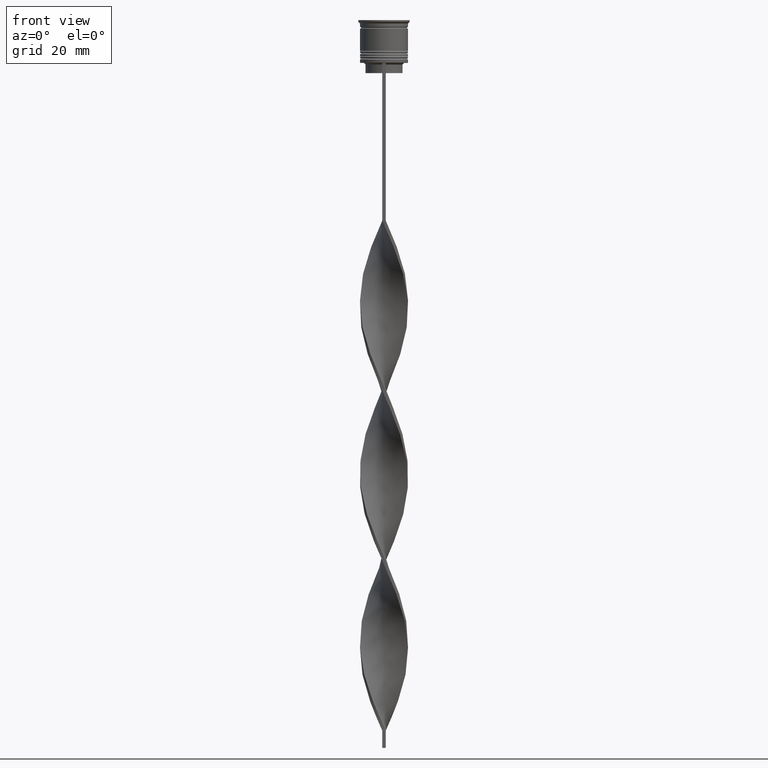
[diagram: clean part render]
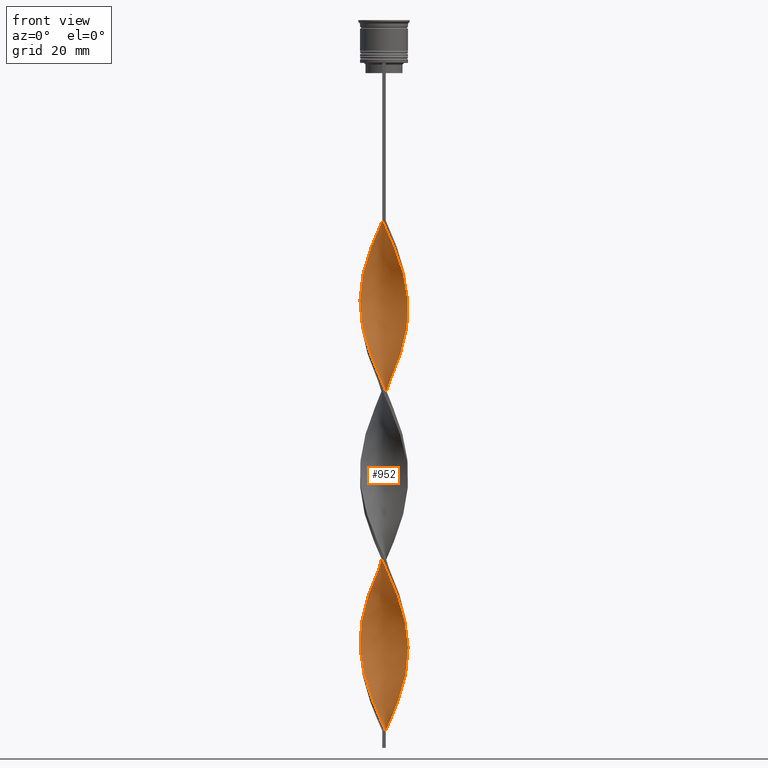
[diagram: same view with one face highlighted and labeled with its STEP entity id]
A machine part, front view. The second image highlights one B-rep face of the part: STEP entity #952.
In plain terms, the highlighted face is a freeform B-spline surface patch.
Its self-contained STEP definition (entity closure, byte-faithful):
#9 = CARTESIAN_POINT ( 'NONE',  ( 1.440874626053873842, -6.899041090270179311, -62.88235294117647811 ) ) ;
#33 = CARTESIAN_POINT ( 'NONE',  ( 4.346365046915568797, -5.509910242367891620, -169.5196078431372371 ) ) ;
#37 = CARTESIAN_POINT ( 'NONE',  ( -6.736663859307489233, 2.071291312187312883, -77.49019607843136725 ) ) ;
#55 = CARTESIAN_POINT ( 'NONE',  ( 5.712673125104408278, -4.127741927368044905, -173.9019607843137294 ) ) ;
#56 = CARTESIAN_POINT ( 'NONE',  ( -5.533515242862685923, 4.364985304700188529, -71.64705882352942012 ) ) ;
#63 = CARTESIAN_POINT ( 'NONE',  ( 1.148645523694209247, -6.953668176878987417, -109.6274509803921546 ) ) ;
#79 = CARTESIAN_POINT ( 'NONE',  ( -3.835796673391454803, 5.912660275514000752, -118.3921568627451109 ) ) ;
#80 = CARTESIAN_POINT ( 'NONE',  ( -7.029988692409724571, -0.5021420494578368032, -83.33333333333332860 ) ) ;
#85 = CARTESIAN_POINT ( 'NONE',  ( -7.029988692409723683, -0.5021420494578368032, -83.33333333333332860 ) ) ;
#98 = CARTESIAN_POINT ( 'NONE',  ( 5.887437909151303828, 3.819433841014672648, -93.55882352941176805 ) ) ;
#100 = CARTESIAN_POINT ( 'NONE',  ( 5.085373964136230107, 4.836214598721332081, -96.48039215686274872 ) ) ;
#104 = CARTESIAN_POINT ( 'NONE',  ( -5.712673125104412719, -4.127741927368047570, -92.09803921568628482 ) ) ;
#114 = CARTESIAN_POINT ( 'NONE',  ( -4.110133708006299180, -5.688303868668616481, -149.0686274509803866 ) ) ;
#120 = LINE ( 'NONE', #2234, #3353 ) ;
#132 = CARTESIAN_POINT ( 'NONE',  ( 7.016273413796890956, 0.1480114280955957262, -184.1274509803921546 ) ) ;
#136 = CARTESIAN_POINT ( 'NONE',  ( 3.583034730602820073, -6.069163844594761770, -115.4705882352941018 ) ) ;
#149 = CARTESIAN_POINT ( 'NONE',  ( 6.489012217373702818, 2.672586844758234825, -90.63725490196078738 ) ) ;
#152 = CARTESIAN_POINT ( 'NONE',  ( -0.7947600748740422105, -6.972686456695599944, -105.2450980392156765 ) ) ;
#168 = CARTESIAN_POINT ( 'NONE',  ( 6.373874598089928512, 3.007758344858553201, -138.8431372549019329 ) ) ;
#169 = CARTESIAN_POINT ( 'NONE',  ( -6.241360575439927061, 3.273882377329165205, -74.56862745098038658 ) ) ;
#179 = CARTESIAN_POINT ( 'NONE',  ( -1.777733174557940776, -6.788936938879025718, -154.9117647058823479 ) ) ;
#185 = CARTESIAN_POINT ( 'NONE',  ( 5.284803272772052196, 4.617451068294914585, -143.2254901960784537 ) ) ;
#186 = CARTESIAN_POINT ( 'NONE',  ( -6.043273861597169727, -3.567750136113299941, -90.63725490196078738 ) ) ;
#200 = CARTESIAN_POINT ( 'NONE',  ( 5.533515242862682371, 4.364985304700184976, -194.3529411764705799 ) ) ;
#204 = CARTESIAN_POINT ( 'NONE',  ( -5.712673125104412719, -4.127741927368047570, -92.09803921568628482 ) ) ;
#218 =( BOUNDED_SURFACE ( )  B_SPLINE_SURFACE ( 1, 2, ( 
 ( #3845, #2356, #1750, #9, #3548, #836, #286, #2063, #1219, #565, #2412, #3612, #1490, #227, #1433, #3254, #1771, #2433, #3633, #2225, #1260, #3064, #1239, #330, #370, #1583, #100, #3694, #1002, #3050, #3105, #722, #2205, #2455, #3399, #353, #2772, #704, #3659, #1022, #1858, #79, #649, #3420, #1284, #1914, #2478, #3679, #1874, #984, #2185, #3379, #413, #687, #1893, #1606, #2143, #1625, #963, #2807, #2167, #2495, #114, #3085, #395, #1318, #1561, #2792, #2752, #1303, #1541, #2513, #3363, #3026, #3714, #2733, #33, #939, #3344, #55, #672, #433, #1930, #3122, #2823, #1639, #132, #1901, #1592, #1270, #677, #2259, #2462, #359, #402, #3055, #3384, #970, #3162, #2583, #692, #1986, #2779 ),
 ( #990, #1570, #2152, #2193, #3090, #1969, #1678, #2858, #2172, #1079, #950, #169, #378, #1374, #3369, #1612, #2565, #85, #2875, #3667, #2797, #1880, #186, #104, #3769, #1307, #2502, #3683, #3700, #1058, #3453, #2281, #760, #474, #3471, #63, #778, #1292, #3178, #2484, #488, #1694, #1396, #3351, #659, #3071, #1864, #2761, #1748, #1098, #3564, #3217, #1488, #2317, #2618, #812, #3821, #1135, #1453, #525, #2299, #2024, #1730, #2936, #1710, #1170, #3272, #2079, #3252, #2978, #1431, #582, #2336, #869, #3528, #834, #225, #3802, #1790, #3488, #793, #3546, #268, #852, #2043, #284, #3236, #2061, #3788, #545, #563, #2000, #3504, #3196, #2370, #245, #2639, #3843, #1156, #2354, #1769, #3862, #2957 ) ),
 .UNSPECIFIED., .F., .F., .F. ) 
 B_SPLINE_SURFACE_WITH_KNOTS ( ( 2, 2 ),
 ( 3, 2, 2, 2, 2, 2, 2, 2, 2, 2, 2, 2, 2, 2, 2, 2, 2, 2, 2, 2, 2, 2, 2, 2, 2, 2, 2, 2, 2, 2, 2, 2, 2, 2, 2, 2, 2, 2, 2, 2, 2, 2, 2, 2, 2, 2, 2, 2, 2, 2, 2, 3 ),
 ( 0.000000000000000000, 1.000000000000000000 ),
 ( 0.000000000000000000, 0.01470588235294117627, 0.02941176470588235253, 0.04411764705882353227, 0.05882352941176470507, 0.07352941176470588480, 0.08823529411764706454, 0.1029411764705882304, 0.1176470588235294101, 0.1323529411764705899, 0.1470588235294117696, 0.1617647058823529493, 0.1764705882352941291, 0.1911764705882352811, 0.2058823529411764608, 0.2205882352941176405, 0.2352941176470588203, 0.2500000000000000000, 0.2647058823529411797, 0.2794117647058823595, 0.2941176470588235392, 0.3088235294117647189, 0.3235294117647058987, 0.3382352941176470784, 0.3529411764705882582, 0.3676470588235294379, 0.3823529411764705621, 0.3970588235294117418, 0.4117647058823529216, 0.4264705882352941013, 0.4411764705882352811, 0.4558823529411764608, 0.4705882352941176405, 0.4852941176470588203, 0.5000000000000000000, 0.5147058823529411242, 0.5294117647058823595, 0.5441176470588234837, 0.5588235294117647189, 0.5735294117647058432, 0.5882352941176470784, 0.6029411764705882026, 0.6176470588235294379, 0.6323529411764705621, 0.6470588235294117974, 0.6617647058823529216, 0.6764705882352941568, 0.6911764705882352811, 0.7058823529411765163, 0.7205882352941176405, 0.7352941176470588758, 0.7500000000000000000 ),
 .UNSPECIFIED. ) 
 GEOMETRIC_REPRESENTATION_ITEM ( )  RATIONAL_B_SPLINE_SURFACE ( (
 ( 1.000000000000000000, 0.9957341762950344677, 1.000000000000000000, 0.9957341762950344677, 1.000000000000000000, 0.9957341762950344677, 1.000000000000000000, 0.9957341762950344677, 1.000000000000000000, 0.9957341762950344677, 1.000000000000000000, 0.9957341762950344677, 1.000000000000000000, 0.9957341762950344677, 1.000000000000000000, 0.9957341762950344677, 1.000000000000000000, 0.9957341762950344677, 1.000000000000000000, 0.9957341762950344677, 1.000000000000000000, 0.9957341762950344677, 1.000000000000000000, 0.9957341762950344677, 1.000000000000000000, 0.9957341762950344677, 1.000000000000000000, 0.9957341762950344677, 1.000000000000000000, 0.9957341762950344677, 1.000000000000000000, 0.9957341762950344677, 1.000000000000000000, 0.9957341762950344677, 1.000000000000000000, 0.9957341762950344677, 1.000000000000000000, 0.9957341762950344677, 1.000000000000000000, 0.9957341762950344677, 1.000000000000000000, 0.9957341762950344677, 1.000000000000000000, 0.9957341762950344677, 1.000000000000000000, 0.9957341762950344677, 1.000000000000000000, 0.9957341762950344677, 1.000000000000000000, 0.9957341762950344677, 1.000000000000000000, 0.9957341762950344677, 1.000000000000000000, 0.9957341762950344677, 1.000000000000000000, 0.9957341762950344677, 1.000000000000000000, 0.9957341762950344677, 1.000000000000000000, 0.9957341762950344677, 1.000000000000000000, 0.9957341762950344677, 1.000000000000000000, 0.9957341762950344677, 1.000000000000000000, 0.9957341762950344677, 1.000000000000000000, 0.9957341762950344677, 1.000000000000000000, 0.9957341762950344677, 1.000000000000000000, 0.9957341762950344677, 1.000000000000000000, 0.9957341762950344677, 1.000000000000000000, 0.9957341762950344677, 1.000000000000000000, 0.9957341762950344677, 1.000000000000000000, 0.9957341762950344677, 1.000000000000000000, 0.9957341762950344677, 1.000000000000000000, 0.9957341762950344677, 1.000000000000000000, 0.9957341762950344677, 1.000000000000000000, 0.9957341762950344677, 1.000000000000000000, 0.9957341762950344677, 1.000000000000000000, 0.9957341762950344677, 1.000000000000000000, 0.9957341762950344677, 1.000000000000000000, 0.9957341762950344677, 1.000000000000000000, 0.9957341762950344677, 1.000000000000000000, 0.9957341762950344677, 1.000000000000000000, 0.9957341762950344677, 1.000000000000000000),
 ( 1.000000000000000000, 0.9957341762950344677, 1.000000000000000000, 0.9957341762950344677, 1.000000000000000000, 0.9957341762950344677, 1.000000000000000000, 0.9957341762950344677, 1.000000000000000000, 0.9957341762950344677, 1.000000000000000000, 0.9957341762950344677, 1.000000000000000000, 0.9957341762950344677, 1.000000000000000000, 0.9957341762950344677, 1.000000000000000000, 0.9957341762950344677, 1.000000000000000000, 0.9957341762950344677, 1.000000000000000000, 0.9957341762950344677, 1.000000000000000000, 0.9957341762950344677, 1.000000000000000000, 0.9957341762950344677, 1.000000000000000000, 0.9957341762950344677, 1.000000000000000000, 0.9957341762950344677, 1.000000000000000000, 0.9957341762950344677, 1.000000000000000000, 0.9957341762950344677, 1.000000000000000000, 0.9957341762950344677, 1.000000000000000000, 0.9957341762950344677, 1.000000000000000000, 0.9957341762950344677, 1.000000000000000000, 0.9957341762950344677, 1.000000000000000000, 0.9957341762950344677, 1.000000000000000000, 0.9957341762950344677, 1.000000000000000000, 0.9957341762950344677, 1.000000000000000000, 0.9957341762950344677, 1.000000000000000000, 0.9957341762950344677, 1.000000000000000000, 0.9957341762950344677, 1.000000000000000000, 0.9957341762950344677, 1.000000000000000000, 0.9957341762950344677, 1.000000000000000000, 0.9957341762950344677, 1.000000000000000000, 0.9957341762950344677, 1.000000000000000000, 0.9957341762950344677, 1.000000000000000000, 0.9957341762950344677, 1.000000000000000000, 0.9957341762950344677, 1.000000000000000000, 0.9957341762950344677, 1.000000000000000000, 0.9957341762950344677, 1.000000000000000000, 0.9957341762950344677, 1.000000000000000000, 0.9957341762950344677, 1.000000000000000000, 0.9957341762950344677, 1.000000000000000000, 0.9957341762950344677, 1.000000000000000000, 0.9957341762950344677, 1.000000000000000000, 0.9957341762950344677, 1.000000000000000000, 0.9957341762950344677, 1.000000000000000000, 0.9957341762950344677, 1.000000000000000000, 0.9957341762950344677, 1.000000000000000000, 0.9957341762950344677, 1.000000000000000000, 0.9957341762950344677, 1.000000000000000000, 0.9957341762950344677, 1.000000000000000000, 0.9957341762950344677, 1.000000000000000000, 0.9957341762950344677, 1.000000000000000000, 0.9957341762950344677, 1.000000000000000000) ) ) 
 REPRESENTATION_ITEM ( '' )  SURFACE ( )  );
#220 = CARTESIAN_POINT ( 'NONE',  ( -5.533515242862680594, -4.364985304700186752, -144.6862745098039227 ) ) ;
#225 = CARTESIAN_POINT ( 'NONE',  ( -5.085373964136232772, 4.836214598721336522, -169.5196078431372371 ) ) ;
#227 = CARTESIAN_POINT ( 'NONE',  ( 6.373874598089922294, -3.007758344858553201, -77.49019607843138147 ) ) ;
#236 = CARTESIAN_POINT ( 'NONE',  ( 2.994927778012247632, 6.346684772736912450, -201.6568627450980387 ) ) ;
#245 = CARTESIAN_POINT ( 'NONE',  ( -3.835796673391458800, -5.912660275514003416, -197.2745098039215463 ) ) ;
#262 = CARTESIAN_POINT ( 'NONE',  ( -1.148645523694208137, -6.953668176878983864, -156.3725490196078454 ) ) ;
#267 = CARTESIAN_POINT ( 'NONE',  ( -2.062455548607893263, -6.707926438924069146, -201.6568627450980387 ) ) ;
#268 = CARTESIAN_POINT ( 'NONE',  ( -6.869610997245777284, 1.434728108918170708, -178.2843137254901933 ) ) ;
#284 = CARTESIAN_POINT ( 'NONE',  ( -7.029988692409723683, -0.5021420494578368032, -182.6666666666666572 ) ) ;
#286 = CARTESIAN_POINT ( 'NONE',  ( 3.259916572276681634, -6.214736031545974981, -67.26470588235292780 ) ) ;
#330 = CARTESIAN_POINT ( 'NONE',  ( 6.241360575439922620, 3.273882377329162985, -92.09803921568628482 ) ) ;
#353 = CARTESIAN_POINT ( 'NONE',  ( -0.1486455236942086366, 7.046331823121012583, -109.6274509803921546 ) ) ;
#359 = CARTESIAN_POINT ( 'NONE',  ( 5.533515242862682371, 4.364985304700184976, -194.3529411764705799 ) ) ;
#370 = CARTESIAN_POINT ( 'NONE',  ( 5.887437909151303828, 3.819433841014672648, -93.55882352941176805 ) ) ;
#371 = CARTESIAN_POINT ( 'NONE',  ( 0.4999999999999991673, -7.000000000000002665, -207.5000000000000000 ) ) ;
#378 = CARTESIAN_POINT ( 'NONE',  ( -6.489012217373707259, 2.672586844758237934, -76.02941176470586981 ) ) ;
#395 = CARTESIAN_POINT ( 'NONE',  ( -2.994927778012248520, -6.346684772736912450, -151.9901960784313530 ) ) ;
#402 = CARTESIAN_POINT ( 'NONE',  ( 5.085373964136230107, 4.836214598721332081, -195.8137254901960773 ) ) ;
#411 = CARTESIAN_POINT ( 'NONE',  ( 3.259916572276681634, -6.214736031545974981, -67.26470588235292780 ) ) ;
#413 = CARTESIAN_POINT ( 'NONE',  ( -7.016273413796890956, -0.1480114280955932282, -134.4607843137254974 ) ) ;
#433 = CARTESIAN_POINT ( 'NONE',  ( 6.373874598089922294, -3.007758344858553201, -176.8235294117647243 ) ) ;
#449 = CARTESIAN_POINT ( 'NONE',  ( 4.856933420439684568, -5.107160209221783376, -71.64705882352942012 ) ) ;
#454 = CARTESIAN_POINT ( 'NONE',  ( 6.924005054333593812, 1.143745604390628445, -134.4607843137254974 ) ) ;
#469 = CARTESIAN_POINT ( 'NONE',  ( 0.7947600748740408783, -6.972686456695594615, -61.42156862745097357 ) ) ;
#473 = CARTESIAN_POINT ( 'NONE',  ( -0.1486455236942075542, -7.046331823121019688, -106.7058823529411882 ) ) ;
#474 = CARTESIAN_POINT ( 'NONE',  ( -0.1486455236942075542, -7.046331823121019688, -106.7058823529412024 ) ) ;
#483 = CARTESIAN_POINT ( 'NONE',  ( -4.110133708006299180, -5.688303868668616481, -149.0686274509803866 ) ) ;
#487 = CARTESIAN_POINT ( 'NONE',  ( 2.406820825421679189, -6.624205700879072012, -112.5490196078431495 ) ) ;
#488 = CARTESIAN_POINT ( 'NONE',  ( 4.110133708006299180, -5.688303868668622698, -116.9313725490195992 ) ) ;
#501 = CARTESIAN_POINT ( 'NONE',  ( 3.259916572276681634, -6.214736031545974981, -166.5980392156862706 ) ) ;
#507 = CARTESIAN_POINT ( 'NONE',  ( 4.856933420439687232, 5.107160209221788705, -144.6862745098039227 ) ) ;
#520 = CARTESIAN_POINT ( 'NONE',  ( 1.777733174557942775, 6.788936938879025718, -204.5784313725490335 ) ) ;
#525 = CARTESIAN_POINT ( 'NONE',  ( 4.856933420439687232, 5.107160209221788705, -144.6862745098039227 ) ) ;
#539 = CARTESIAN_POINT ( 'NONE',  ( -6.043273861597166174, 3.567750136113296389, -125.6960784313725412 ) ) ;
#543 = CARTESIAN_POINT ( 'NONE',  ( -6.924005054333593812, -1.143745604390630666, -184.1274509803921546 ) ) ;
#545 = CARTESIAN_POINT ( 'NONE',  ( -6.373874598089927623, -3.007758344858554977, -188.5098039215686185 ) ) ;
#556 = CARTESIAN_POINT ( 'NONE',  ( -6.241360575439923508, -3.273882377329162985, -141.7647058823529562 ) ) ;
#561 = CARTESIAN_POINT ( 'NONE',  ( -4.856933420439688120, -5.107160209221786928, -194.3529411764705799 ) ) ;
#563 = CARTESIAN_POINT ( 'NONE',  ( -6.043273861597169727, -3.567750136113299941, -189.9705882352941160 ) ) ;
#565 = CARTESIAN_POINT ( 'NONE',  ( 4.856933420439684568, -5.107160209221783376, -71.64705882352943433 ) ) ;
#582 = CARTESIAN_POINT ( 'NONE',  ( -2.406820825421679189, 6.624205700879071124, -162.2156862745098351 ) ) ;
#598 = CARTESIAN_POINT ( 'NONE',  ( -6.818021416257463940, -1.785349159323426527, -185.5882352941176237 ) ) ;
#649 = CARTESIAN_POINT ( 'NONE',  ( -4.346365046915568797, 5.509910242367891620, -119.8529411764705799 ) ) ;
#650 = VERTEX_POINT ( 'NONE', #3804 ) ;
#659 = CARTESIAN_POINT ( 'NONE',  ( 5.887437909151305604, -3.819433841014677533, -122.7745098039215605 ) ) ;
#664 = CARTESIAN_POINT ( 'NONE',  ( -0.5000000000000000000, -6.999999999999997335, -58.50000000000000000 ) ) ;
#672 = CARTESIAN_POINT ( 'NONE',  ( 6.043273861597165286, -3.567750136113298165, -175.3627450980391984 ) ) ;
#677 = CARTESIAN_POINT ( 'NONE',  ( 6.489012217373702818, 2.672586844758234825, -189.9705882352941160 ) ) ;
#687 = CARTESIAN_POINT ( 'NONE',  ( -7.002558135184062671, -0.7981649056490314198, -135.9215686274509665 ) ) ;
#689 = CARTESIAN_POINT ( 'NONE',  ( -1.777733174557943663, 6.788936938879031047, -61.42156862745097357 ) ) ;
#692 = CARTESIAN_POINT ( 'NONE',  ( 1.777733174557942775, 6.788936938879025718, -204.5784313725490335 ) ) ;
#704 = CARTESIAN_POINT ( 'NONE',  ( -1.440874626053873842, 6.899041090270179311, -112.5490196078431495 ) ) ;
#705 = CARTESIAN_POINT ( 'NONE',  ( -5.085373964136232772, 4.836214598721336522, -70.18627450980390847 ) ) ;
#720 = CARTESIAN_POINT ( 'NONE',  ( -0.5000000000000000000, -6.999999999999997335, -58.50000000000000000 ) ) ;
#722 = CARTESIAN_POINT ( 'NONE',  ( 2.406820825421679189, 6.624205700879066683, -103.7843137254901933 ) ) ;
#734 = CARTESIAN_POINT ( 'NONE',  ( 1.440874626053873619, -6.899041090270179311, -62.88235294117647101 ) ) ;
#739 = CARTESIAN_POINT ( 'NONE',  ( 6.869610997245777284, -1.434728108918172929, -128.6176470588235361 ) ) ;
#755 = CARTESIAN_POINT ( 'NONE',  ( 1.777733174557942775, 6.788936938879025718, -105.2450980392156765 ) ) ;
#759 = CARTESIAN_POINT ( 'NONE',  ( -6.869610997245777284, 1.434728108918170708, -178.2843137254901933 ) ) ;
#760 = CARTESIAN_POINT ( 'NONE',  ( -0.7947600748740422105, -6.972686456695599944, -105.2450980392156765 ) ) ;
#773 = CARTESIAN_POINT ( 'NONE',  ( 2.994927778012247632, 6.346684772736912450, -102.3235294117646959 ) ) ;
#777 = CARTESIAN_POINT ( 'NONE',  ( -4.856933420439688120, -5.107160209221786928, -95.01960784313726549 ) ) ;
#778 = CARTESIAN_POINT ( 'NONE',  ( 1.777733174557942331, -6.788936938879031047, -111.0882352941176379 ) ) ;
#789 = CARTESIAN_POINT ( 'NONE',  ( -7.002558135184063559, -0.7981649056490314198, -135.9215686274509665 ) ) ;
#792 = CARTESIAN_POINT ( 'NONE',  ( -5.085373964136232772, 4.836214598721336522, -169.5196078431372371 ) ) ;
#793 = CARTESIAN_POINT ( 'NONE',  ( -6.489012217373707259, 2.672586844758237934, -175.3627450980391984 ) ) ;
#805 = CARTESIAN_POINT ( 'NONE',  ( 5.712673125104408278, -4.127741927368044017, -173.9019607843137294 ) ) ;
#811 = CARTESIAN_POINT ( 'NONE',  ( 6.241360575439927061, -3.273882377329166538, -124.2352941176470580 ) ) ;
#812 = CARTESIAN_POINT ( 'NONE',  ( 6.373874598089928512, 3.007758344858553201, -138.8431372549019045 ) ) ;
#828 = CARTESIAN_POINT ( 'NONE',  ( 4.110133708006296516, 5.688303868668619145, -198.7352941176470722 ) ) ;
#834 = CARTESIAN_POINT ( 'NONE',  ( -4.637232685409779620, 5.307443892742487179, -168.0588235294117680 ) ) ;
#836 = CARTESIAN_POINT ( 'NONE',  ( 2.684036471161910242, -6.516811787577953652, -65.80392156862747299 ) ) ;
#848 = CARTESIAN_POINT ( 'NONE',  ( -5.085373964136228331, -4.836214598721334745, -146.1470588235294201 ) ) ;
#852 = CARTESIAN_POINT ( 'NONE',  ( -7.002558135184068000, 0.7981649056490309757, -179.7450980392157192 ) ) ;
#864 = CARTESIAN_POINT ( 'NONE',  ( 0.5000000000000008882, 6.999999999999997335, -207.5000000000000000 ) ) ;
#869 = CARTESIAN_POINT ( 'NONE',  ( -3.583034730602820517, 6.069163844594761770, -165.1372549019608016 ) ) ;
#886 = CARTESIAN_POINT ( 'NONE',  ( -5.712673125104412719, -4.127741927368047570, -191.4313725490196134 ) ) ;
#939 = CARTESIAN_POINT ( 'NONE',  ( 4.856933420439684568, -5.107160209221783376, -170.9803921568627629 ) ) ;
#942 = CARTESIAN_POINT ( 'NONE',  ( -6.595948007173694450, -2.396553752090990752, -87.71568627450979250 ) ) ;
#950 = CARTESIAN_POINT ( 'NONE',  ( -5.887437909151306492, 3.819433841014676645, -73.10784313725488914 ) ) ;
#952 = ADVANCED_FACE ( 'NONE', ( #1792 ), #218, .T. ) ;
#963 = CARTESIAN_POINT ( 'NONE',  ( -5.887437909151304716, -3.819433841014671760, -143.2254901960784537 ) ) ;
#970 = CARTESIAN_POINT ( 'NONE',  ( 3.583034730602818296, 6.069163844594755552, -200.1960784313725981 ) ) ;
#984 = CARTESIAN_POINT ( 'NONE',  ( -6.818021416257460388, 1.785349159323422530, -130.0784313725490335 ) ) ;
#990 = CARTESIAN_POINT ( 'NONE',  ( -0.5000000000000000000, 7.000000000000002665, -58.50000000000000000 ) ) ;
#1000 = CARTESIAN_POINT ( 'NONE',  ( -2.062455548607892375, 6.707926438924063817, -114.0098039215686185 ) ) ;
#1002 = CARTESIAN_POINT ( 'NONE',  ( 4.110133708006296516, 5.688303868668619145, -99.40196078431372939 ) ) ;
#1022 = CARTESIAN_POINT ( 'NONE',  ( -2.684036471161910242, 6.516811787577953652, -115.4705882352940876 ) ) ;
#1043 = CARTESIAN_POINT ( 'NONE',  ( 7.029988692409724571, 0.5021420494578359150, -133.0000000000000000 ) ) ;
#1057 = CARTESIAN_POINT ( 'NONE',  ( -2.062455548607893263, -6.707926438924069146, -102.3235294117646959 ) ) ;
#1058 = CARTESIAN_POINT ( 'NONE',  ( -2.684036471161914239, -6.516811787577958093, -100.8627450980392126 ) ) ;
#1073 = CARTESIAN_POINT ( 'NONE',  ( 5.712673125104408278, -4.127741927368044017, -74.56862745098038658 ) ) ;
#1076 = VERTEX_POINT ( 'NONE', #2165 ) ;
#1077 = CARTESIAN_POINT ( 'NONE',  ( 3.259916572276687852, 6.214736031545977646, -149.0686274509803866 ) ) ;
#1079 = CARTESIAN_POINT ( 'NONE',  ( -5.533515242862685035, 4.364985304700188529, -71.64705882352943433 ) ) ;
#1097 = CARTESIAN_POINT ( 'NONE',  ( -0.5000000000000000000, 7.000000000000002665, -157.8333333333333144 ) ) ;
#1098 = CARTESIAN_POINT ( 'NONE',  ( 7.002558135184068000, -0.7981649056490286442, -130.0784313725490335 ) ) ;
#1108 = CARTESIAN_POINT ( 'NONE',  ( -6.595948007173689120, 2.396553752090990752, -128.6176470588235361 ) ) ;
#1113 = CARTESIAN_POINT ( 'NONE',  ( -3.583034730602820961, 6.069163844594761770, -165.1372549019608016 ) ) ;
#1129 = CARTESIAN_POINT ( 'NONE',  ( 0.1486455236942082203, -7.046331823121012583, -159.2941176470588118 ) ) ;
#1135 = CARTESIAN_POINT ( 'NONE',  ( 5.712673125104412719, 4.127741927368047570, -141.7647058823529562 ) ) ;
#1150 = CARTESIAN_POINT ( 'NONE',  ( -4.637232685409776067, -5.307443892742481850, -147.6078431372548891 ) ) ;
#1155 = CARTESIAN_POINT ( 'NONE',  ( -3.835796673391458800, -5.912660275514003416, -197.2745098039215463 ) ) ;
#1156 = CARTESIAN_POINT ( 'NONE',  ( -2.062455548607893263, -6.707926438924069146, -201.6568627450980387 ) ) ;
#1167 = CARTESIAN_POINT ( 'NONE',  ( -5.712673125104407390, 4.127741927368045793, -124.2352941176470580 ) ) ;
#1170 = CARTESIAN_POINT ( 'NONE',  ( 1.440874626053877616, 6.899041090270182863, -153.4509803921568789 ) ) ;
#1189 = CARTESIAN_POINT ( 'NONE',  ( -4.346365046915573238, -5.509910242367893396, -195.8137254901960773 ) ) ;
#1209 = ORIENTED_EDGE ( 'NONE', *, *, #1243, .F. ) ;
#1219 = CARTESIAN_POINT ( 'NONE',  ( 4.346365046915568797, -5.509910242367891620, -70.18627450980390847 ) ) ;
#1227 = VERTEX_POINT ( 'NONE', #1335 ) ;
#1239 = CARTESIAN_POINT ( 'NONE',  ( 6.489012217373702818, 2.672586844758234825, -90.63725490196078738 ) ) ;
#1243 = EDGE_CURVE ( 'NONE', #2699, #650, #2537, .T. ) ;
#1248 = ORIENTED_EDGE ( 'NONE', *, *, #3041, .T. ) ;
#1260 = CARTESIAN_POINT ( 'NONE',  ( 6.869610997245771955, 1.434728108918170042, -87.71568627450979250 ) ) ;
#1263 = CARTESIAN_POINT ( 'NONE',  ( 0.5000000000000003331, 2.333333333333331261, -207.5000000000000000 ) ) ;
#1270 = CARTESIAN_POINT ( 'NONE',  ( 6.736663859307483904, 2.071291312187309774, -188.5098039215686185 ) ) ;
#1284 = CARTESIAN_POINT ( 'NONE',  ( -5.284803272772045979, 4.617451068294913696, -122.7745098039215605 ) ) ;
#1292 = CARTESIAN_POINT ( 'NONE',  ( 2.406820825421679189, -6.624205700879071124, -112.5490196078431495 ) ) ;
#1301 = CARTESIAN_POINT ( 'NONE',  ( -0.1486455236942086366, 7.046331823121012583, -109.6274509803921404 ) ) ;
#1303 = CARTESIAN_POINT ( 'NONE',  ( 0.1486455236942082203, -7.046331823121012583, -159.2941176470588118 ) ) ;
#1307 = CARTESIAN_POINT ( 'NONE',  ( -4.856933420439688120, -5.107160209221786928, -95.01960784313725128 ) ) ;
#1316 = CARTESIAN_POINT ( 'NONE',  ( 6.595948007173689120, -2.396553752090988088, -78.95098039215686470 ) ) ;
#1318 = CARTESIAN_POINT ( 'NONE',  ( -2.406820825421680077, -6.624205700879065795, -153.4509803921568789 ) ) ;
#1335 = CARTESIAN_POINT ( 'NONE',  ( 0.4999999999999991673, -7.000000000000002665, -207.5000000000000000 ) ) ;
#1340 = CARTESIAN_POINT ( 'NONE',  ( -1.148645523694208581, 6.953668176878987417, -159.2941176470588118 ) ) ;
#1353 = CARTESIAN_POINT ( 'NONE',  ( 5.085373964136230107, 4.836214598721332081, -96.48039215686274872 ) ) ;
#1357 = CARTESIAN_POINT ( 'NONE',  ( -1.777733174557943663, 6.788936938879031047, -160.7549019607842808 ) ) ;
#1373 = CARTESIAN_POINT ( 'NONE',  ( 4.637232685409777844, -5.307443892742488067, -118.3921568627451109 ) ) ;
#1374 = CARTESIAN_POINT ( 'NONE',  ( -6.736663859307489233, 2.071291312187312439, -77.49019607843138147 ) ) ;
#1389 = CARTESIAN_POINT ( 'NONE',  ( -6.924005054333588483, 1.143745604390630444, -131.5392156862745310 ) ) ;
#1394 = CARTESIAN_POINT ( 'NONE',  ( 3.835796673391459688, 5.912660275514002528, -147.6078431372548891 ) ) ;
#1396 = CARTESIAN_POINT ( 'NONE',  ( 5.085373964136232772, -4.836214598721336522, -119.8529411764705799 ) ) ;
#1411 = CARTESIAN_POINT ( 'NONE',  ( -7.016273413796890956, -0.1480114280955932282, -134.4607843137254974 ) ) ;
#1415 = CARTESIAN_POINT ( 'NONE',  ( -2.684036471161914239, -6.516811787577958093, -100.8627450980392126 ) ) ;
#1425 = CARTESIAN_POINT ( 'NONE',  ( -2.994927778012248520, -6.346684772736912450, -151.9901960784313530 ) ) ;
#1431 = CARTESIAN_POINT ( 'NONE',  ( -1.777733174557943663, 6.788936938879031047, -160.7549019607842808 ) ) ;
#1433 = CARTESIAN_POINT ( 'NONE',  ( 6.595948007173689120, -2.396553752090988088, -78.95098039215686470 ) ) ;
#1447 = CARTESIAN_POINT ( 'NONE',  ( 2.406820825421679189, 6.624205700879067571, -203.1176470588235361 ) ) ;
#1452 = CARTESIAN_POINT ( 'NONE',  ( -0.1486455236942075542, -7.046331823121019688, -206.0392156862745026 ) ) ;
#1453 = CARTESIAN_POINT ( 'NONE',  ( 5.284803272772052196, 4.617451068294914585, -143.2254901960784537 ) ) ;
#1460 =( BOUNDED_CURVE ( )  B_SPLINE_CURVE ( 2, ( #3051, #2734, #689, #2168, #3422, #2209, #3400, #1895, #705, #56, #1875, #3066, #3086, #37, #1916, #2774, #2794, #80, #3124, #3635, #942, #3470, #1985, #204, #3216, #777, #2844, #3177, #2826, #1415, #1057, #1641, #152, #473, #2552, #1676, #2857, #487, #2257, #136, #3750, #1373, #1999, #3436, #2892, #811, #3734, #3193, #739, #1693, #2563, #1043, #454, #3141, #1659, #168, #2873, #3768, #185, #507, #2316, #1394, #1077, #2600, #2280, #2581, #2023, #3787, #1097, #1340, #1357, #3501, #3801, #1113, #2298, #3487, #792, #2534, #2242, #1709, #1947, #3452, #759, #1968, #3161, #2386, #543, #598, #2117, #3587, #3842, #886, #1747, #561, #1189, #1155, #2409, #3235, #267, #2042, #3609, #1452, #2995 ),
 .UNSPECIFIED., .F., .T. ) 
 B_SPLINE_CURVE_WITH_KNOTS ( ( 3, 2, 2, 2, 2, 2, 2, 2, 2, 2, 2, 2, 2, 2, 2, 2, 2, 2, 2, 2, 2, 2, 2, 2, 2, 2, 2, 2, 2, 2, 2, 2, 2, 2, 2, 2, 2, 2, 2, 2, 2, 2, 2, 2, 2, 2, 2, 2, 2, 2, 2, 3 ),
 ( 0.000000000000000000, 0.01470588235294117453, 0.02941176470588234906, 0.04411764705882353227, 0.05882352941176469813, 0.07352941176470588480, 0.08823529411764706454, 0.1029411764705882443, 0.1176470588235293963, 0.1323529411764705899, 0.1470588235294117696, 0.1617647058823529493, 0.1764705882352941291, 0.1911764705882352811, 0.2058823529411764885, 0.2205882352941176405, 0.2352941176470587925, 0.2500000000000000000, 0.2647058823529411797, 0.2794117647058823595, 0.2941176470588235392, 0.3088235294117647189, 0.3235294117647058987, 0.3382352941176470229, 0.3529411764705882582, 0.3676470588235294379, 0.3823529411764705621, 0.3970588235294117418, 0.4117647058823529771, 0.4264705882352941013, 0.4411764705882352811, 0.4558823529411764608, 0.4705882352941175850, 0.4852941176470588203, 0.5000000000000000000, 0.5147058823529411242, 0.5294117647058823595, 0.5441176470588234837, 0.5588235294117647189, 0.5735294117647058432, 0.5882352941176470784, 0.6029411764705882026, 0.6176470588235294379, 0.6323529411764705621, 0.6470588235294117974, 0.6617647058823529216, 0.6764705882352940458, 0.6911764705882351700, 0.7058823529411765163, 0.7205882352941176405, 0.7352941176470588758, 0.7500000000000000000 ),
 .UNSPECIFIED. ) 
 CURVE ( )  GEOMETRIC_REPRESENTATION_ITEM ( )  RATIONAL_B_SPLINE_CURVE ( ( 1.000000000000000000, 0.9957341762950344677, 1.000000000000000000, 0.9957341762950344677, 1.000000000000000000, 0.9957341762950344677, 1.000000000000000000, 0.9957341762950344677, 1.000000000000000000, 0.9957341762950344677, 1.000000000000000000, 0.9957341762950344677, 1.000000000000000000, 0.9957341762950344677, 1.000000000000000000, 0.9957341762950344677, 1.000000000000000000, 0.9957341762950344677, 1.000000000000000000, 0.9957341762950344677, 1.000000000000000000, 0.9957341762950344677, 1.000000000000000000, 0.9957341762950344677, 1.000000000000000000, 0.9957341762950344677, 1.000000000000000000, 0.9957341762950344677, 1.000000000000000000, 0.9957341762950344677, 1.000000000000000000, 0.9957341762950344677, 1.000000000000000000, 0.9957341762950344677, 1.000000000000000000, 0.9957341762950344677, 1.000000000000000000, 0.9957341762950344677, 1.000000000000000000, 0.9957341762950344677, 1.000000000000000000, 0.9957341762950344677, 1.000000000000000000, 0.9957341762950344677, 1.000000000000000000, 0.9957341762950344677, 1.000000000000000000, 0.9957341762950344677, 1.000000000000000000, 0.9957341762950344677, 1.000000000000000000, 0.9957341762950344677, 1.000000000000000000, 0.9957341762950344677, 1.000000000000000000, 0.9957341762950344677, 1.000000000000000000, 0.9957341762950344677, 1.000000000000000000, 0.9957341762950344677, 1.000000000000000000, 0.9957341762950344677, 1.000000000000000000, 0.9957341762950344677, 1.000000000000000000, 0.9957341762950344677, 1.000000000000000000, 0.9957341762950344677, 1.000000000000000000, 0.9957341762950344677, 1.000000000000000000, 0.9957341762950344677, 1.000000000000000000, 0.9957341762950344677, 1.000000000000000000, 0.9957341762950344677, 1.000000000000000000, 0.9957341762950344677, 1.000000000000000000, 0.9957341762950344677, 1.000000000000000000, 0.9957341762950344677, 1.000000000000000000, 0.9957341762950344677, 1.000000000000000000, 0.9957341762950344677, 1.000000000000000000, 0.9957341762950344677, 1.000000000000000000, 0.9957341762950344677, 1.000000000000000000, 0.9957341762950344677, 1.000000000000000000, 0.9957341762950344677, 1.000000000000000000, 0.9957341762950344677, 1.000000000000000000, 0.9957341762950344677, 1.000000000000000000, 0.9957341762950344677, 1.000000000000000000, 0.9957341762950344677, 1.000000000000000000 ) ) 
 REPRESENTATION_ITEM ( '' )  );
#1469 = CARTESIAN_POINT ( 'NONE',  ( 7.029988692409719242, -0.5021420494578376914, -182.6666666666666856 ) ) ;
#1488 = CARTESIAN_POINT ( 'NONE',  ( 6.924005054333593812, 1.143745604390628445, -134.4607843137254974 ) ) ;
#1490 = CARTESIAN_POINT ( 'NONE',  ( 6.043273861597165286, -3.567750136113298165, -76.02941176470586981 ) ) ;
#1541 = CARTESIAN_POINT ( 'NONE',  ( 0.7947600748740408783, -6.972686456695594615, -160.7549019607842808 ) ) ;
#1561 = CARTESIAN_POINT ( 'NONE',  ( -1.777733174557940776, -6.788936938879025718, -154.9117647058823479 ) ) ;
#1570 = CARTESIAN_POINT ( 'NONE',  ( -1.148645523694208581, 6.953668176878987417, -59.96078431372549744 ) ) ;
#1583 = CARTESIAN_POINT ( 'NONE',  ( 5.533515242862682371, 4.364985304700184976, -95.01960784313725128 ) ) ;
#1592 = CARTESIAN_POINT ( 'NONE',  ( 6.869610997245771955, 1.434728108918170042, -187.0490196078431211 ) ) ;
#1604 = CARTESIAN_POINT ( 'NONE',  ( 1.148645523694207471, 6.953668176878983864, -106.7058823529411882 ) ) ;
#1606 = CARTESIAN_POINT ( 'NONE',  ( -6.736663859307484792, -2.071291312187307998, -138.8431372549019045 ) ) ;
#1612 = CARTESIAN_POINT ( 'NONE',  ( -7.002558135184068000, 0.7981649056490309757, -80.41176470588234793 ) ) ;
#1625 = CARTESIAN_POINT ( 'NONE',  ( -6.241360575439922620, -3.273882377329162985, -141.7647058823529562 ) ) ;
#1637 = CARTESIAN_POINT ( 'NONE',  ( 6.818021416257458611, -1.785349159323424972, -80.41176470588234793 ) ) ;
#1639 = CARTESIAN_POINT ( 'NONE',  ( 7.029988692409719242, -0.5021420494578376914, -182.6666666666666572 ) ) ;
#1641 = CARTESIAN_POINT ( 'NONE',  ( -1.440874626053876728, -6.899041090270183751, -103.7843137254901791 ) ) ;
#1646 = DIRECTION ( 'NONE',  ( 0.000000000000000000, 1.000000000000000000, 0.000000000000000000 ) ) ;
#1655 = CARTESIAN_POINT ( 'NONE',  ( 6.869610997245771955, 1.434728108918170042, -87.71568627450979250 ) ) ;
#1659 = CARTESIAN_POINT ( 'NONE',  ( 6.595948007173694450, 2.396553752090989864, -137.3823529411764639 ) ) ;
#1676 = CARTESIAN_POINT ( 'NONE',  ( 1.148645523694209247, -6.953668176878987417, -109.6274509803921404 ) ) ;
#1678 = CARTESIAN_POINT ( 'NONE',  ( -4.110133708006299180, 5.688303868668623586, -67.26470588235292780 ) ) ;
#1689 = CARTESIAN_POINT ( 'NONE',  ( -3.583034730602817408, -6.069163844594757329, -150.5294117647058840 ) ) ;
#1693 = CARTESIAN_POINT ( 'NONE',  ( 7.002558135184068888, -0.7981649056490286442, -130.0784313725490335 ) ) ;
#1694 = CARTESIAN_POINT ( 'NONE',  ( 4.637232685409778732, -5.307443892742488067, -118.3921568627451109 ) ) ;
#1707 = CARTESIAN_POINT ( 'NONE',  ( 4.856933420439684568, -5.107160209221783376, -170.9803921568627629 ) ) ;
#1709 = CARTESIAN_POINT ( 'NONE',  ( -6.241360575439927949, 3.273882377329165205, -173.9019607843137294 ) ) ;
#1710 = CARTESIAN_POINT ( 'NONE',  ( 2.062455548607894151, 6.707926438924069146, -151.9901960784313530 ) ) ;
#1725 = CARTESIAN_POINT ( 'NONE',  ( -4.346365046915568797, 5.509910242367891620, -119.8529411764705799 ) ) ;
#1730 = CARTESIAN_POINT ( 'NONE',  ( 3.259916572276687852, 6.214736031545977646, -149.0686274509803866 ) ) ;
#1743 = CARTESIAN_POINT ( 'NONE',  ( 5.887437909151303828, 3.819433841014672648, -192.8921568627450824 ) ) ;
#1747 = CARTESIAN_POINT ( 'NONE',  ( -5.284803272772051308, -4.617451068294915473, -192.8921568627450824 ) ) ;
#1748 = CARTESIAN_POINT ( 'NONE',  ( 6.869610997245777284, -1.434728108918172929, -128.6176470588235361 ) ) ;
#1750 = CARTESIAN_POINT ( 'NONE',  ( 0.7947600748740408783, -6.972686456695594615, -61.42156862745097357 ) ) ;
#1763 = CARTESIAN_POINT ( 'NONE',  ( 5.284803272772046867, -4.617451068294912808, -172.4411764705882035 ) ) ;
#1769 = CARTESIAN_POINT ( 'NONE',  ( -0.7947600748740422105, -6.972686456695599944, -204.5784313725490335 ) ) ;
#1771 = CARTESIAN_POINT ( 'NONE',  ( 6.924005054333587594, -1.143745604390631110, -81.87254901960783116 ) ) ;
#1790 = CARTESIAN_POINT ( 'NONE',  ( -5.887437909151306492, 3.819433841014676645, -172.4411764705882035 ) ) ;
#1792 = FACE_OUTER_BOUND ( 'NONE', #2531, .T. ) ;
#1858 = CARTESIAN_POINT ( 'NONE',  ( -3.259916572276682523, 6.214736031545974093, -116.9313725490195992 ) ) ;
#1864 = CARTESIAN_POINT ( 'NONE',  ( 6.489012217373708147, -2.672586844758236158, -125.6960784313725412 ) ) ;
#1874 = CARTESIAN_POINT ( 'NONE',  ( -6.595948007173689120, 2.396553752090990752, -128.6176470588235361 ) ) ;
#1875 = CARTESIAN_POINT ( 'NONE',  ( -5.887437909151306492, 3.819433841014676645, -73.10784313725488914 ) ) ;
#1880 = CARTESIAN_POINT ( 'NONE',  ( -6.373874598089927623, -3.007758344858554977, -89.17647058823527573 ) ) ;
#1893 = CARTESIAN_POINT ( 'NONE',  ( -6.869610997245771955, -1.434728108918169154, -137.3823529411764639 ) ) ;
#1895 = CARTESIAN_POINT ( 'NONE',  ( -4.637232685409778732, 5.307443892742487179, -68.72549019607842524 ) ) ;
#1901 = CARTESIAN_POINT ( 'NONE',  ( 7.002558135184062671, 0.7981649056490307537, -185.5882352941176237 ) ) ;
#1912 = CARTESIAN_POINT ( 'NONE',  ( -3.259916572276682523, 6.214736031545974093, -116.9313725490195992 ) ) ;
#1914 = CARTESIAN_POINT ( 'NONE',  ( -5.712673125104407390, 4.127741927368045793, -124.2352941176470580 ) ) ;
#1916 = CARTESIAN_POINT ( 'NONE',  ( -6.869610997245777284, 1.434728108918170708, -78.95098039215686470 ) ) ;
#1928 = CARTESIAN_POINT ( 'NONE',  ( 6.043273861597165286, -3.567750136113298165, -76.02941176470586981 ) ) ;
#1930 = CARTESIAN_POINT ( 'NONE',  ( 6.595948007173689120, -2.396553752090988088, -178.2843137254901933 ) ) ;
#1942 = B_SPLINE_CURVE_WITH_KNOTS ( 'NONE', 3,
 ( #3106, #1263, #2809, #371 ),
 .UNSPECIFIED., .F., .F.,
 ( 4, 4 ),
 ( 0.000000000000000000, 1.000000000000000000 ),
 .UNSPECIFIED. ) ;
#1945 = CARTESIAN_POINT ( 'NONE',  ( 3.835796673391455247, -5.912660275513998975, -68.72549019607842524 ) ) ;
#1947 = CARTESIAN_POINT ( 'NONE',  ( -6.489012217373707259, 2.672586844758237934, -175.3627450980391984 ) ) ;
#1968 = CARTESIAN_POINT ( 'NONE',  ( -7.002558135184068888, 0.7981649056490309757, -179.7450980392157476 ) ) ;
#1969 = CARTESIAN_POINT ( 'NONE',  ( -3.583034730602820517, 6.069163844594761770, -65.80392156862747299 ) ) ;
#1981 = CARTESIAN_POINT ( 'NONE',  ( 2.406820825421679189, 6.624205700879067571, -103.7843137254901791 ) ) ;
#1985 = CARTESIAN_POINT ( 'NONE',  ( -6.043273861597169727, -3.567750136113299941, -90.63725490196078738 ) ) ;
#1986 = CARTESIAN_POINT ( 'NONE',  ( 1.148645523694207249, 6.953668176878983864, -206.0392156862745026 ) ) ;
#1995 = CARTESIAN_POINT ( 'NONE',  ( 0.7947600748740408783, -6.972686456695594615, -160.7549019607842808 ) ) ;
#1999 = CARTESIAN_POINT ( 'NONE',  ( 5.085373964136232772, -4.836214598721336522, -119.8529411764705799 ) ) ;
#2000 = CARTESIAN_POINT ( 'NONE',  ( -5.712673125104412719, -4.127741927368047570, -191.4313725490196134 ) ) ;
#2016 = CARTESIAN_POINT ( 'NONE',  ( 3.583034730602818740, 6.069163844594755552, -200.1960784313725696 ) ) ;
#2023 = CARTESIAN_POINT ( 'NONE',  ( 0.7947600748740401011, 6.972686456695599944, -154.9117647058823479 ) ) ;
#2024 = CARTESIAN_POINT ( 'NONE',  ( 3.835796673391459688, 5.912660275514002528, -147.6078431372548891 ) ) ;
#2038 = CARTESIAN_POINT ( 'NONE',  ( 2.684036471161910242, -6.516811787577953652, -165.1372549019608016 ) ) ;
#2042 = CARTESIAN_POINT ( 'NONE',  ( -1.440874626053876728, -6.899041090270183751, -203.1176470588235361 ) ) ;
#2043 = CARTESIAN_POINT ( 'NONE',  ( -7.016273413796895397, 0.1480114280955971418, -181.2058823529411598 ) ) ;
#2057 = CARTESIAN_POINT ( 'NONE',  ( -5.284803272772045979, 4.617451068294913696, -122.7745098039215605 ) ) ;
#2061 = CARTESIAN_POINT ( 'NONE',  ( -6.818021416257463940, -1.785349159323426527, -185.5882352941176237 ) ) ;
#2063 = CARTESIAN_POINT ( 'NONE',  ( 3.835796673391455691, -5.912660275513999864, -68.72549019607842524 ) ) ;
#2073 = CARTESIAN_POINT ( 'NONE',  ( 6.818021416257458611, -1.785349159323424972, -179.7450980392157476 ) ) ;
#2079 = CARTESIAN_POINT ( 'NONE',  ( 0.1486455236942084146, 7.046331823121019688, -156.3725490196078454 ) ) ;
#2117 = CARTESIAN_POINT ( 'NONE',  ( -6.595948007173694450, -2.396553752090990752, -187.0490196078431211 ) ) ;
#2143 = CARTESIAN_POINT ( 'NONE',  ( -6.489012217373701930, -2.672586844758237490, -140.3039215686274588 ) ) ;
#2152 = CARTESIAN_POINT ( 'NONE',  ( -1.777733174557943663, 6.788936938879031047, -61.42156862745097357 ) ) ;
#2165 = CARTESIAN_POINT ( 'NONE',  ( -0.5000000000000000000, 7.000000000000002665, -58.50000000000000000 ) ) ;
#2167 = CARTESIAN_POINT ( 'NONE',  ( -5.085373964136228331, -4.836214598721334745, -146.1470588235294201 ) ) ;
#2168 = CARTESIAN_POINT ( 'NONE',  ( -2.406820825421679189, 6.624205700879072012, -62.88235294117647101 ) ) ;
#2172 = CARTESIAN_POINT ( 'NONE',  ( -5.085373964136232772, 4.836214598721336522, -70.18627450980390847 ) ) ;
#2185 = CARTESIAN_POINT ( 'NONE',  ( -6.924005054333588483, 1.143745604390630444, -131.5392156862745310 ) ) ;
#2193 = CARTESIAN_POINT ( 'NONE',  ( -2.406820825421679189, 6.624205700879071124, -62.88235294117647811 ) ) ;
#2202 = CARTESIAN_POINT ( 'NONE',  ( -2.684036471161910242, 6.516811787577953652, -115.4705882352941018 ) ) ;
#2205 = CARTESIAN_POINT ( 'NONE',  ( 1.777733174557942775, 6.788936938879025718, -105.2450980392156765 ) ) ;
#2209 = CARTESIAN_POINT ( 'NONE',  ( -3.583034730602820961, 6.069163844594761770, -65.80392156862745878 ) ) ;
#2225 = CARTESIAN_POINT ( 'NONE',  ( 7.002558135184062671, 0.7981649056490307537, -86.25490196078432348 ) ) ;
#2234 = CARTESIAN_POINT ( 'NONE',  ( -0.5000000000000000000, -6.999999999999997335, -58.50000000000000000 ) ) ;
#2239 = CARTESIAN_POINT ( 'NONE',  ( 5.533515242862682371, 4.364985304700184976, -95.01960784313726549 ) ) ;
#2242 = CARTESIAN_POINT ( 'NONE',  ( -5.887437909151306492, 3.819433841014676645, -172.4411764705882035 ) ) ;
#2253 = CARTESIAN_POINT ( 'NONE',  ( 0.1486455236942082203, -7.046331823121012583, -59.96078431372549034 ) ) ;
#2257 = CARTESIAN_POINT ( 'NONE',  ( 2.994927778012250741, -6.346684772736916003, -114.0098039215686185 ) ) ;
#2259 = CARTESIAN_POINT ( 'NONE',  ( 6.241360575439922620, 3.273882377329162985, -191.4313725490196134 ) ) ;
#2275 = CARTESIAN_POINT ( 'NONE',  ( 3.583034730602818740, 6.069163844594755552, -100.8627450980392126 ) ) ;
#2280 = CARTESIAN_POINT ( 'NONE',  ( 2.062455548607894151, 6.707926438924069146, -151.9901960784313530 ) ) ;
#2281 = CARTESIAN_POINT ( 'NONE',  ( -1.440874626053876728, -6.899041090270183751, -103.7843137254901933 ) ) ;
#2293 = CARTESIAN_POINT ( 'NONE',  ( -6.869610997245771955, -1.434728108918169154, -137.3823529411764639 ) ) ;
#2298 = CARTESIAN_POINT ( 'NONE',  ( -4.110133708006299180, 5.688303868668623586, -166.5980392156862706 ) ) ;
#2299 = CARTESIAN_POINT ( 'NONE',  ( 4.346365046915571462, 5.509910242367894284, -146.1470588235294201 ) ) ;
#2312 = CARTESIAN_POINT ( 'NONE',  ( 7.016273413796890956, 0.1480114280955957262, -184.1274509803921546 ) ) ;
#2316 = CARTESIAN_POINT ( 'NONE',  ( 4.346365046915571462, 5.509910242367894284, -146.1470588235294201 ) ) ;
#2317 = CARTESIAN_POINT ( 'NONE',  ( 6.818021416257463940, 1.785349159323427415, -135.9215686274509665 ) ) ;
#2331 = CARTESIAN_POINT ( 'NONE',  ( 6.924005054333587594, -1.143745604390631110, -181.2058823529411598 ) ) ;
#2336 = CARTESIAN_POINT ( 'NONE',  ( -2.994927778012249409, 6.346684772736916891, -163.6764705882352757 ) ) ;
#2350 = CARTESIAN_POINT ( 'NONE',  ( 2.062455548607891487, -6.707926438924064705, -163.6764705882352757 ) ) ;
#2354 = CARTESIAN_POINT ( 'NONE',  ( -1.440874626053876728, -6.899041090270183751, -203.1176470588235361 ) ) ;
#2356 = CARTESIAN_POINT ( 'NONE',  ( 0.1486455236942082203, -7.046331823121012583, -59.96078431372549744 ) ) ;
#2366 = CARTESIAN_POINT ( 'NONE',  ( 1.148645523694207471, 6.953668176878983864, -206.0392156862745026 ) ) ;
#2370 = CARTESIAN_POINT ( 'NONE',  ( -4.346365046915573238, -5.509910242367893396, -195.8137254901960773 ) ) ;
#2386 = CARTESIAN_POINT ( 'NONE',  ( -7.029988692409724571, -0.5021420494578368032, -182.6666666666666856 ) ) ;
#2409 = CARTESIAN_POINT ( 'NONE',  ( -3.259916572276684299, -6.214736031545979422, -198.7352941176470722 ) ) ;
#2412 = CARTESIAN_POINT ( 'NONE',  ( 5.284803272772046867, -4.617451068294912808, -73.10784313725488914 ) ) ;
#2433 = CARTESIAN_POINT ( 'NONE',  ( 7.029988692409719242, -0.5021420494578376914, -83.33333333333332860 ) ) ;
#2455 = CARTESIAN_POINT ( 'NONE',  ( 1.148645523694207249, 6.953668176878983864, -106.7058823529412024 ) ) ;
#2462 = CARTESIAN_POINT ( 'NONE',  ( 5.887437909151303828, 3.819433841014672648, -192.8921568627450824 ) ) ;
#2478 = CARTESIAN_POINT ( 'NONE',  ( -6.043273861597166174, 3.567750136113296389, -125.6960784313725412 ) ) ;
#2484 = CARTESIAN_POINT ( 'NONE',  ( 3.583034730602819629, -6.069163844594761770, -115.4705882352940876 ) ) ;
#2493 = CARTESIAN_POINT ( 'NONE',  ( -0.7947600748740394350, 6.972686456695594615, -111.0882352941176379 ) ) ;
#2495 = CARTESIAN_POINT ( 'NONE',  ( -4.637232685409776956, -5.307443892742481850, -147.6078431372548891 ) ) ;
#2499 = EDGE_CURVE ( 'NONE', #650, #1227, #1942, .T. ) ;
#2502 = CARTESIAN_POINT ( 'NONE',  ( -4.346365046915573238, -5.509910242367893396, -96.48039215686274872 ) ) ;
#2511 = CARTESIAN_POINT ( 'NONE',  ( 6.924005054333587594, -1.143745604390631110, -81.87254901960783116 ) ) ;
#2513 = CARTESIAN_POINT ( 'NONE',  ( 1.440874626053873842, -6.899041090270179311, -162.2156862745098351 ) ) ;
#2529 = CARTESIAN_POINT ( 'NONE',  ( 7.029988692409719242, -0.5021420494578376914, -83.33333333333332860 ) ) ;
#2531 = EDGE_LOOP ( 'NONE', ( #1248, #3305, #3608, #1209 ) ) ;
#2534 = CARTESIAN_POINT ( 'NONE',  ( -5.533515242862685923, 4.364985304700188529, -170.9803921568627629 ) ) ;
#2537 =( BOUNDED_CURVE ( )  B_SPLINE_CURVE ( 2, ( #720, #2253, #469, #734, #2840, #3762, #411, #1945, #2805, #449, #2790, #1073, #1928, #3173, #1316, #1637, #2511, #2529, #3448, #3712, #1655, #3730, #149, #3120, #98, #2239, #1353, #3747, #3397, #2275, #773, #1981, #755, #1604, #3155, #1301, #2493, #3692, #1000, #2202, #1912, #3103, #1725, #3521, #2057, #1167, #539, #3798, #1108, #2596, #1389, #2612, #1411, #789, #2293, #3231, #2951, #556, #3837, #220, #848, #1150, #483, #1689, #1425, #3815, #179, #262, #3189, #1129, #1995, #2911, #2350, #2038, #501, #3782, #3212, #1707, #1763, #805, #3542, #2888, #2634, #2073, #2331, #1469, #2312, #3559, #2929, #3248, #2654, #2870, #1743, #200, #3858, #3497, #828, #2016, #236, #1447, #520, #2366, #864 ),
 .UNSPECIFIED., .F., .T. ) 
 B_SPLINE_CURVE_WITH_KNOTS ( ( 3, 2, 2, 2, 2, 2, 2, 2, 2, 2, 2, 2, 2, 2, 2, 2, 2, 2, 2, 2, 2, 2, 2, 2, 2, 2, 2, 2, 2, 2, 2, 2, 2, 2, 2, 2, 2, 2, 2, 2, 2, 2, 2, 2, 2, 2, 2, 2, 2, 2, 2, 3 ),
 ( 0.000000000000000000, 0.01470588235294117453, 0.02941176470588234906, 0.04411764705882353227, 0.05882352941176469813, 0.07352941176470588480, 0.08823529411764706454, 0.1029411764705882443, 0.1176470588235293963, 0.1323529411764705899, 0.1470588235294117696, 0.1617647058823529493, 0.1764705882352941291, 0.1911764705882352811, 0.2058823529411764885, 0.2205882352941176405, 0.2352941176470587925, 0.2500000000000000000, 0.2647058823529411797, 0.2794117647058823595, 0.2941176470588235392, 0.3088235294117647189, 0.3235294117647058987, 0.3382352941176470229, 0.3529411764705882582, 0.3676470588235294379, 0.3823529411764705621, 0.3970588235294117418, 0.4117647058823529771, 0.4264705882352941013, 0.4411764705882352811, 0.4558823529411764608, 0.4705882352941175850, 0.4852941176470588203, 0.5000000000000000000, 0.5147058823529411242, 0.5294117647058823595, 0.5441176470588234837, 0.5588235294117647189, 0.5735294117647058432, 0.5882352941176470784, 0.6029411764705882026, 0.6176470588235294379, 0.6323529411764705621, 0.6470588235294117974, 0.6617647058823529216, 0.6764705882352940458, 0.6911764705882351700, 0.7058823529411765163, 0.7205882352941176405, 0.7352941176470588758, 0.7500000000000000000 ),
 .UNSPECIFIED. ) 
 CURVE ( )  GEOMETRIC_REPRESENTATION_ITEM ( )  RATIONAL_B_SPLINE_CURVE ( ( 1.000000000000000000, 0.9957341762950344677, 1.000000000000000000, 0.9957341762950344677, 1.000000000000000000, 0.9957341762950344677, 1.000000000000000000, 0.9957341762950344677, 1.000000000000000000, 0.9957341762950344677, 1.000000000000000000, 0.9957341762950344677, 1.000000000000000000, 0.9957341762950344677, 1.000000000000000000, 0.9957341762950344677, 1.000000000000000000, 0.9957341762950344677, 1.000000000000000000, 0.9957341762950344677, 1.000000000000000000, 0.9957341762950344677, 1.000000000000000000, 0.9957341762950344677, 1.000000000000000000, 0.9957341762950344677, 1.000000000000000000, 0.9957341762950344677, 1.000000000000000000, 0.9957341762950344677, 1.000000000000000000, 0.9957341762950344677, 1.000000000000000000, 0.9957341762950344677, 1.000000000000000000, 0.9957341762950344677, 1.000000000000000000, 0.9957341762950344677, 1.000000000000000000, 0.9957341762950344677, 1.000000000000000000, 0.9957341762950344677, 1.000000000000000000, 0.9957341762950344677, 1.000000000000000000, 0.9957341762950344677, 1.000000000000000000, 0.9957341762950344677, 1.000000000000000000, 0.9957341762950344677, 1.000000000000000000, 0.9957341762950344677, 1.000000000000000000, 0.9957341762950344677, 1.000000000000000000, 0.9957341762950344677, 1.000000000000000000, 0.9957341762950344677, 1.000000000000000000, 0.9957341762950344677, 1.000000000000000000, 0.9957341762950344677, 1.000000000000000000, 0.9957341762950344677, 1.000000000000000000, 0.9957341762950344677, 1.000000000000000000, 0.9957341762950344677, 1.000000000000000000, 0.9957341762950344677, 1.000000000000000000, 0.9957341762950344677, 1.000000000000000000, 0.9957341762950344677, 1.000000000000000000, 0.9957341762950344677, 1.000000000000000000, 0.9957341762950344677, 1.000000000000000000, 0.9957341762950344677, 1.000000000000000000, 0.9957341762950344677, 1.000000000000000000, 0.9957341762950344677, 1.000000000000000000, 0.9957341762950344677, 1.000000000000000000, 0.9957341762950344677, 1.000000000000000000, 0.9957341762950344677, 1.000000000000000000, 0.9957341762950344677, 1.000000000000000000, 0.9957341762950344677, 1.000000000000000000, 0.9957341762950344677, 1.000000000000000000, 0.9957341762950344677, 1.000000000000000000, 0.9957341762950344677, 1.000000000000000000, 0.9957341762950344677, 1.000000000000000000 ) ) 
 REPRESENTATION_ITEM ( '' )  );
#2552 = CARTESIAN_POINT ( 'NONE',  ( 0.4999999999999991673, -7.000000000000002665, -108.1666666666666572 ) ) ;
#2563 = CARTESIAN_POINT ( 'NONE',  ( 7.016273413796896286, -0.1480114280955963924, -131.5392156862745310 ) ) ;
#2565 = CARTESIAN_POINT ( 'NONE',  ( -7.016273413796895397, 0.1480114280955971418, -81.87254901960783116 ) ) ;
#2581 = CARTESIAN_POINT ( 'NONE',  ( 1.440874626053877616, 6.899041090270182863, -153.4509803921568789 ) ) ;
#2582 = EDGE_CURVE ( 'NONE', #1076, #1227, #1460, .T. ) ;
#2583 = CARTESIAN_POINT ( 'NONE',  ( 2.406820825421679189, 6.624205700879066683, -203.1176470588235361 ) ) ;
#2596 = CARTESIAN_POINT ( 'NONE',  ( -6.818021416257460388, 1.785349159323422308, -130.0784313725490335 ) ) ;
#2600 = CARTESIAN_POINT ( 'NONE',  ( 2.684036471161911575, 6.516811787577958981, -150.5294117647058840 ) ) ;
#2612 = CARTESIAN_POINT ( 'NONE',  ( -7.029988692409719242, 0.5021420494578385796, -133.0000000000000000 ) ) ;
#2618 = CARTESIAN_POINT ( 'NONE',  ( 6.595948007173694450, 2.396553752090989864, -137.3823529411764639 ) ) ;
#2634 = CARTESIAN_POINT ( 'NONE',  ( 6.595948007173689120, -2.396553752090988088, -178.2843137254901933 ) ) ;
#2639 = CARTESIAN_POINT ( 'NONE',  ( -3.259916572276684299, -6.214736031545979422, -198.7352941176470722 ) ) ;
#2654 = CARTESIAN_POINT ( 'NONE',  ( 6.489012217373702818, 2.672586844758234825, -189.9705882352941160 ) ) ;
#2699 = VERTEX_POINT ( 'NONE', #664 ) ;
#2733 = CARTESIAN_POINT ( 'NONE',  ( 3.835796673391455691, -5.912660275513999864, -168.0588235294117680 ) ) ;
#2734 = CARTESIAN_POINT ( 'NONE',  ( -1.148645523694208581, 6.953668176878987417, -59.96078431372549034 ) ) ;
#2752 = CARTESIAN_POINT ( 'NONE',  ( -0.5000000000000000000, -6.999999999999997335, -157.8333333333333144 ) ) ;
#2761 = CARTESIAN_POINT ( 'NONE',  ( 6.736663859307489233, -2.071291312187312439, -127.1568627450980102 ) ) ;
#2772 = CARTESIAN_POINT ( 'NONE',  ( -0.7947600748740394350, 6.972686456695594615, -111.0882352941176379 ) ) ;
#2774 = CARTESIAN_POINT ( 'NONE',  ( -7.002558135184068888, 0.7981649056490309757, -80.41176470588234793 ) ) ;
#2779 = CARTESIAN_POINT ( 'NONE',  ( 0.5000000000000008882, 6.999999999999997335, -207.5000000000000000 ) ) ;
#2790 = CARTESIAN_POINT ( 'NONE',  ( 5.284803272772046867, -4.617451068294912808, -73.10784313725488914 ) ) ;
#2792 = CARTESIAN_POINT ( 'NONE',  ( -1.148645523694208137, -6.953668176878983864, -156.3725490196078454 ) ) ;
#2794 = CARTESIAN_POINT ( 'NONE',  ( -7.016273413796895397, 0.1480114280955971418, -81.87254901960783116 ) ) ;
#2797 = CARTESIAN_POINT ( 'NONE',  ( -6.595948007173694450, -2.396553752090990752, -87.71568627450979250 ) ) ;
#2805 = CARTESIAN_POINT ( 'NONE',  ( 4.346365046915568797, -5.509910242367891620, -70.18627450980390847 ) ) ;
#2807 = CARTESIAN_POINT ( 'NONE',  ( -5.533515242862680594, -4.364985304700186752, -144.6862745098039227 ) ) ;
#2809 = CARTESIAN_POINT ( 'NONE',  ( 0.4999999999999996669, -2.333333333333336590, -207.5000000000000000 ) ) ;
#2823 = CARTESIAN_POINT ( 'NONE',  ( 6.924005054333587594, -1.143745604390631110, -181.2058823529411598 ) ) ;
#2826 = CARTESIAN_POINT ( 'NONE',  ( -3.259916572276684299, -6.214736031545979422, -99.40196078431372939 ) ) ;
#2840 = CARTESIAN_POINT ( 'NONE',  ( 2.062455548607891487, -6.707926438924064705, -64.34313725490196134 ) ) ;
#2844 = CARTESIAN_POINT ( 'NONE',  ( -4.346365046915573238, -5.509910242367893396, -96.48039215686274872 ) ) ;
#2857 = CARTESIAN_POINT ( 'NONE',  ( 1.777733174557942331, -6.788936938879031047, -111.0882352941176379 ) ) ;
#2858 = CARTESIAN_POINT ( 'NONE',  ( -4.637232685409779620, 5.307443892742487179, -68.72549019607842524 ) ) ;
#2870 = CARTESIAN_POINT ( 'NONE',  ( 6.241360575439923508, 3.273882377329162985, -191.4313725490196134 ) ) ;
#2873 = CARTESIAN_POINT ( 'NONE',  ( 6.043273861597169727, 3.567750136113302162, -140.3039215686274588 ) ) ;
#2875 = CARTESIAN_POINT ( 'NONE',  ( -6.924005054333593812, -1.143745604390630666, -84.79411764705882604 ) ) ;
#2888 = CARTESIAN_POINT ( 'NONE',  ( 6.373874598089922294, -3.007758344858553201, -176.8235294117647243 ) ) ;
#2892 = CARTESIAN_POINT ( 'NONE',  ( 5.887437909151305604, -3.819433841014677533, -122.7745098039215605 ) ) ;
#2911 = CARTESIAN_POINT ( 'NONE',  ( 1.440874626053873619, -6.899041090270179311, -162.2156862745098351 ) ) ;
#2929 = CARTESIAN_POINT ( 'NONE',  ( 6.869610997245771955, 1.434728108918170042, -187.0490196078431211 ) ) ;
#2936 = CARTESIAN_POINT ( 'NONE',  ( 2.684036471161911575, 6.516811787577959869, -150.5294117647058840 ) ) ;
#2951 = CARTESIAN_POINT ( 'NONE',  ( -6.489012217373701930, -2.672586844758237490, -140.3039215686274588 ) ) ;
#2957 = CARTESIAN_POINT ( 'NONE',  ( 0.4999999999999991673, -7.000000000000002665, -207.5000000000000000 ) ) ;
#2978 = CARTESIAN_POINT ( 'NONE',  ( -1.148645523694208581, 6.953668176878987417, -159.2941176470588118 ) ) ;
#2995 = CARTESIAN_POINT ( 'NONE',  ( 0.4999999999999991673, -7.000000000000002665, -207.5000000000000000 ) ) ;
#3026 = CARTESIAN_POINT ( 'NONE',  ( 2.684036471161910242, -6.516811787577953652, -165.1372549019608016 ) ) ;
#3041 = EDGE_CURVE ( 'NONE', #2699, #1076, #120, .T. ) ;
#3050 = CARTESIAN_POINT ( 'NONE',  ( 3.583034730602818296, 6.069163844594755552, -100.8627450980392126 ) ) ;
#3051 = CARTESIAN_POINT ( 'NONE',  ( -0.5000000000000000000, 7.000000000000002665, -58.50000000000000000 ) ) ;
#3055 = CARTESIAN_POINT ( 'NONE',  ( 4.637232685409776067, 5.307443892742482738, -197.2745098039215463 ) ) ;
#3064 = CARTESIAN_POINT ( 'NONE',  ( 6.736663859307483904, 2.071291312187309774, -89.17647058823527573 ) ) ;
#3066 = CARTESIAN_POINT ( 'NONE',  ( -6.241360575439927949, 3.273882377329165205, -74.56862745098038658 ) ) ;
#3071 = CARTESIAN_POINT ( 'NONE',  ( 6.241360575439926173, -3.273882377329166538, -124.2352941176470580 ) ) ;
#3085 = CARTESIAN_POINT ( 'NONE',  ( -3.583034730602816964, -6.069163844594757329, -150.5294117647058840 ) ) ;
#3086 = CARTESIAN_POINT ( 'NONE',  ( -6.489012217373707259, 2.672586844758237934, -76.02941176470586981 ) ) ;
#3090 = CARTESIAN_POINT ( 'NONE',  ( -2.994927778012249409, 6.346684772736916891, -64.34313725490196134 ) ) ;
#3103 = CARTESIAN_POINT ( 'NONE',  ( -3.835796673391454359, 5.912660275513999864, -118.3921568627451109 ) ) ;
#3105 = CARTESIAN_POINT ( 'NONE',  ( 2.994927778012247632, 6.346684772736912450, -102.3235294117646959 ) ) ;
#3106 = CARTESIAN_POINT ( 'NONE',  ( 0.5000000000000008882, 6.999999999999997335, -207.5000000000000000 ) ) ;
#3120 = CARTESIAN_POINT ( 'NONE',  ( 6.241360575439923508, 3.273882377329162985, -92.09803921568628482 ) ) ;
#3122 = CARTESIAN_POINT ( 'NONE',  ( 6.818021416257458611, -1.785349159323424972, -179.7450980392157192 ) ) ;
#3124 = CARTESIAN_POINT ( 'NONE',  ( -6.924005054333593812, -1.143745604390630666, -84.79411764705882604 ) ) ;
#3141 = CARTESIAN_POINT ( 'NONE',  ( 6.818021416257463940, 1.785349159323427415, -135.9215686274509665 ) ) ;
#3155 = CARTESIAN_POINT ( 'NONE',  ( 0.5000000000000008882, 6.999999999999997335, -108.1666666666666572 ) ) ;
#3161 = CARTESIAN_POINT ( 'NONE',  ( -7.016273413796895397, 0.1480114280955971418, -181.2058823529411598 ) ) ;
#3162 = CARTESIAN_POINT ( 'NONE',  ( 2.994927778012247632, 6.346684772736912450, -201.6568627450980387 ) ) ;
#3173 = CARTESIAN_POINT ( 'NONE',  ( 6.373874598089922294, -3.007758344858553201, -77.49019607843136725 ) ) ;
#3177 = CARTESIAN_POINT ( 'NONE',  ( -3.835796673391458800, -5.912660275514003416, -97.94117647058824616 ) ) ;
#3178 = CARTESIAN_POINT ( 'NONE',  ( 2.994927778012250741, -6.346684772736916003, -114.0098039215686185 ) ) ;
#3189 = CARTESIAN_POINT ( 'NONE',  ( -0.5000000000000000000, -6.999999999999997335, -157.8333333333333144 ) ) ;
#3193 = CARTESIAN_POINT ( 'NONE',  ( 6.736663859307489233, -2.071291312187312883, -127.1568627450980244 ) ) ;
#3196 = CARTESIAN_POINT ( 'NONE',  ( -4.856933420439688120, -5.107160209221786928, -194.3529411764705799 ) ) ;
#3212 = CARTESIAN_POINT ( 'NONE',  ( 4.346365046915568797, -5.509910242367891620, -169.5196078431372371 ) ) ;
#3216 = CARTESIAN_POINT ( 'NONE',  ( -5.284803272772051308, -4.617451068294915473, -93.55882352941176805 ) ) ;
#3217 = CARTESIAN_POINT ( 'NONE',  ( 7.029988692409723683, 0.5021420494578359150, -133.0000000000000000 ) ) ;
#3231 = CARTESIAN_POINT ( 'NONE',  ( -6.736663859307484792, -2.071291312187307554, -138.8431372549019329 ) ) ;
#3235 = CARTESIAN_POINT ( 'NONE',  ( -2.684036471161914239, -6.516811787577958093, -200.1960784313725696 ) ) ;
#3236 = CARTESIAN_POINT ( 'NONE',  ( -6.924005054333593812, -1.143745604390630666, -184.1274509803921546 ) ) ;
#3248 = CARTESIAN_POINT ( 'NONE',  ( 6.736663859307483904, 2.071291312187309774, -188.5098039215686185 ) ) ;
#3252 = CARTESIAN_POINT ( 'NONE',  ( -0.5000000000000000000, 7.000000000000002665, -157.8333333333333144 ) ) ;
#3254 = CARTESIAN_POINT ( 'NONE',  ( 6.818021416257458611, -1.785349159323424972, -80.41176470588234793 ) ) ;
#3272 = CARTESIAN_POINT ( 'NONE',  ( 0.7947600748740401011, 6.972686456695599944, -154.9117647058823479 ) ) ;
#3305 = ORIENTED_EDGE ( 'NONE', *, *, #2582, .T. ) ;
#3344 = CARTESIAN_POINT ( 'NONE',  ( 5.284803272772046867, -4.617451068294912808, -172.4411764705882035 ) ) ;
#3351 = CARTESIAN_POINT ( 'NONE',  ( 5.533515242862685923, -4.364985304700187640, -121.3137254901960631 ) ) ;
#3353 = VECTOR ( 'NONE', #1646, 1000.000000000000000 ) ;
#3363 = CARTESIAN_POINT ( 'NONE',  ( 2.062455548607891487, -6.707926438924064705, -163.6764705882352757 ) ) ;
#3369 = CARTESIAN_POINT ( 'NONE',  ( -6.869610997245777284, 1.434728108918170708, -78.95098039215686470 ) ) ;
#3379 = CARTESIAN_POINT ( 'NONE',  ( -7.029988692409719242, 0.5021420494578385796, -133.0000000000000000 ) ) ;
#3384 = CARTESIAN_POINT ( 'NONE',  ( 4.110133708006296516, 5.688303868668619145, -198.7352941176470722 ) ) ;
#3397 = CARTESIAN_POINT ( 'NONE',  ( 4.110133708006296516, 5.688303868668619145, -99.40196078431372939 ) ) ;
#3399 = CARTESIAN_POINT ( 'NONE',  ( 0.5000000000000008882, 6.999999999999997335, -108.1666666666666572 ) ) ;
#3400 = CARTESIAN_POINT ( 'NONE',  ( -4.110133708006299180, 5.688303868668623586, -67.26470588235292780 ) ) ;
#3420 = CARTESIAN_POINT ( 'NONE',  ( -4.856933420439685456, 5.107160209221782488, -121.3137254901960631 ) ) ;
#3422 = CARTESIAN_POINT ( 'NONE',  ( -2.994927778012249409, 6.346684772736916891, -64.34313725490196134 ) ) ;
#3436 = CARTESIAN_POINT ( 'NONE',  ( 5.533515242862686812, -4.364985304700187640, -121.3137254901960773 ) ) ;
#3448 = CARTESIAN_POINT ( 'NONE',  ( 7.016273413796890956, 0.1480114280955957262, -84.79411764705882604 ) ) ;
#3452 = CARTESIAN_POINT ( 'NONE',  ( -6.736663859307489233, 2.071291312187312883, -176.8235294117647243 ) ) ;
#3453 = CARTESIAN_POINT ( 'NONE',  ( -2.062455548607893263, -6.707926438924069146, -102.3235294117646959 ) ) ;
#3470 = CARTESIAN_POINT ( 'NONE',  ( -6.373874598089927623, -3.007758344858554977, -89.17647058823528994 ) ) ;
#3471 = CARTESIAN_POINT ( 'NONE',  ( 0.4999999999999991673, -7.000000000000002665, -108.1666666666666572 ) ) ;
#3487 = CARTESIAN_POINT ( 'NONE',  ( -4.637232685409778732, 5.307443892742487179, -168.0588235294117680 ) ) ;
#3488 = CARTESIAN_POINT ( 'NONE',  ( -6.241360575439927061, 3.273882377329165205, -173.9019607843137294 ) ) ;
#3497 = CARTESIAN_POINT ( 'NONE',  ( 4.637232685409776067, 5.307443892742482738, -197.2745098039215463 ) ) ;
#3501 = CARTESIAN_POINT ( 'NONE',  ( -2.406820825421679189, 6.624205700879072012, -162.2156862745098351 ) ) ;
#3504 = CARTESIAN_POINT ( 'NONE',  ( -5.284803272772051308, -4.617451068294915473, -192.8921568627450824 ) ) ;
#3521 = CARTESIAN_POINT ( 'NONE',  ( -4.856933420439685456, 5.107160209221782488, -121.3137254901960773 ) ) ;
#3528 = CARTESIAN_POINT ( 'NONE',  ( -4.110133708006299180, 5.688303868668623586, -166.5980392156862706 ) ) ;
#3542 = CARTESIAN_POINT ( 'NONE',  ( 6.043273861597165286, -3.567750136113298165, -175.3627450980391984 ) ) ;
#3546 = CARTESIAN_POINT ( 'NONE',  ( -6.736663859307489233, 2.071291312187312439, -176.8235294117647243 ) ) ;
#3548 = CARTESIAN_POINT ( 'NONE',  ( 2.062455548607891487, -6.707926438924064705, -64.34313725490196134 ) ) ;
#3559 = CARTESIAN_POINT ( 'NONE',  ( 7.002558135184063559, 0.7981649056490307537, -185.5882352941176237 ) ) ;
#3564 = CARTESIAN_POINT ( 'NONE',  ( 7.016273413796896286, -0.1480114280955963924, -131.5392156862745310 ) ) ;
#3587 = CARTESIAN_POINT ( 'NONE',  ( -6.373874598089927623, -3.007758344858554977, -188.5098039215686185 ) ) ;
#3608 = ORIENTED_EDGE ( 'NONE', *, *, #2499, .F. ) ;
#3609 = CARTESIAN_POINT ( 'NONE',  ( -0.7947600748740422105, -6.972686456695599944, -204.5784313725490335 ) ) ;
#3612 = CARTESIAN_POINT ( 'NONE',  ( 5.712673125104408278, -4.127741927368044905, -74.56862745098038658 ) ) ;
#3633 = CARTESIAN_POINT ( 'NONE',  ( 7.016273413796890956, 0.1480114280955957262, -84.79411764705882604 ) ) ;
#3635 = CARTESIAN_POINT ( 'NONE',  ( -6.818021416257463940, -1.785349159323426527, -86.25490196078432348 ) ) ;
#3659 = CARTESIAN_POINT ( 'NONE',  ( -2.062455548607892375, 6.707926438924063817, -114.0098039215686185 ) ) ;
#3667 = CARTESIAN_POINT ( 'NONE',  ( -6.818021416257463940, -1.785349159323426527, -86.25490196078432348 ) ) ;
#3679 = CARTESIAN_POINT ( 'NONE',  ( -6.373874598089922294, 3.007758344858553201, -127.1568627450980102 ) ) ;
#3683 = CARTESIAN_POINT ( 'NONE',  ( -3.835796673391458800, -5.912660275514003416, -97.94117647058824616 ) ) ;
#3692 = CARTESIAN_POINT ( 'NONE',  ( -1.440874626053873619, 6.899041090270179311, -112.5490196078431495 ) ) ;
#3694 = CARTESIAN_POINT ( 'NONE',  ( 4.637232685409776067, 5.307443892742482738, -97.94117647058824616 ) ) ;
#3700 = CARTESIAN_POINT ( 'NONE',  ( -3.259916572276684299, -6.214736031545979422, -99.40196078431372939 ) ) ;
#3712 = CARTESIAN_POINT ( 'NONE',  ( 7.002558135184063559, 0.7981649056490307537, -86.25490196078432348 ) ) ;
#3714 = CARTESIAN_POINT ( 'NONE',  ( 3.259916572276681634, -6.214736031545974981, -166.5980392156862706 ) ) ;
#3730 = CARTESIAN_POINT ( 'NONE',  ( 6.736663859307483904, 2.071291312187309774, -89.17647058823528994 ) ) ;
#3734 = CARTESIAN_POINT ( 'NONE',  ( 6.489012217373708147, -2.672586844758236158, -125.6960784313725412 ) ) ;
#3747 = CARTESIAN_POINT ( 'NONE',  ( 4.637232685409776067, 5.307443892742482738, -97.94117647058824616 ) ) ;
#3750 = CARTESIAN_POINT ( 'NONE',  ( 4.110133708006299180, -5.688303868668622698, -116.9313725490195992 ) ) ;
#3762 = CARTESIAN_POINT ( 'NONE',  ( 2.684036471161910242, -6.516811787577953652, -65.80392156862745878 ) ) ;
#3768 = CARTESIAN_POINT ( 'NONE',  ( 5.712673125104412719, 4.127741927368047570, -141.7647058823529562 ) ) ;
#3769 = CARTESIAN_POINT ( 'NONE',  ( -5.284803272772051308, -4.617451068294915473, -93.55882352941176805 ) ) ;
#3782 = CARTESIAN_POINT ( 'NONE',  ( 3.835796673391455247, -5.912660275513998975, -168.0588235294117680 ) ) ;
#3787 = CARTESIAN_POINT ( 'NONE',  ( 0.1486455236942084146, 7.046331823121019688, -156.3725490196078454 ) ) ;
#3788 = CARTESIAN_POINT ( 'NONE',  ( -6.595948007173694450, -2.396553752090990752, -187.0490196078431211 ) ) ;
#3798 = CARTESIAN_POINT ( 'NONE',  ( -6.373874598089922294, 3.007758344858553201, -127.1568627450980244 ) ) ;
#3801 = CARTESIAN_POINT ( 'NONE',  ( -2.994927778012249409, 6.346684772736916891, -163.6764705882352757 ) ) ;
#3802 = CARTESIAN_POINT ( 'NONE',  ( -5.533515242862685035, 4.364985304700188529, -170.9803921568627629 ) ) ;
#3804 = CARTESIAN_POINT ( 'NONE',  ( 0.5000000000000008882, 6.999999999999997335, -207.5000000000000000 ) ) ;
#3815 = CARTESIAN_POINT ( 'NONE',  ( -2.406820825421679633, -6.624205700879066683, -153.4509803921568789 ) ) ;
#3821 = CARTESIAN_POINT ( 'NONE',  ( 6.043273861597169727, 3.567750136113302162, -140.3039215686274588 ) ) ;
#3837 = CARTESIAN_POINT ( 'NONE',  ( -5.887437909151304716, -3.819433841014671760, -143.2254901960784537 ) ) ;
#3842 = CARTESIAN_POINT ( 'NONE',  ( -6.043273861597169727, -3.567750136113299941, -189.9705882352941160 ) ) ;
#3843 = CARTESIAN_POINT ( 'NONE',  ( -2.684036471161914239, -6.516811787577958093, -200.1960784313725981 ) ) ;
#3845 = CARTESIAN_POINT ( 'NONE',  ( -0.5000000000000000000, -6.999999999999997335, -58.50000000000000000 ) ) ;
#3858 = CARTESIAN_POINT ( 'NONE',  ( 5.085373964136230107, 4.836214598721332081, -195.8137254901960773 ) ) ;
#3862 = CARTESIAN_POINT ( 'NONE',  ( -0.1486455236942075542, -7.046331823121019688, -206.0392156862745026 ) ) ;